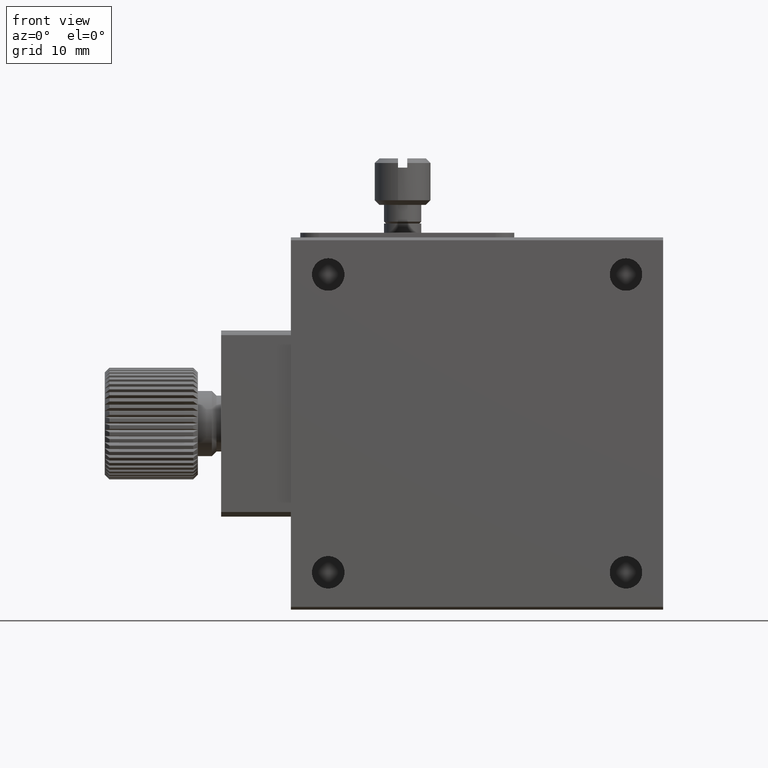
[diagram: clean part render]
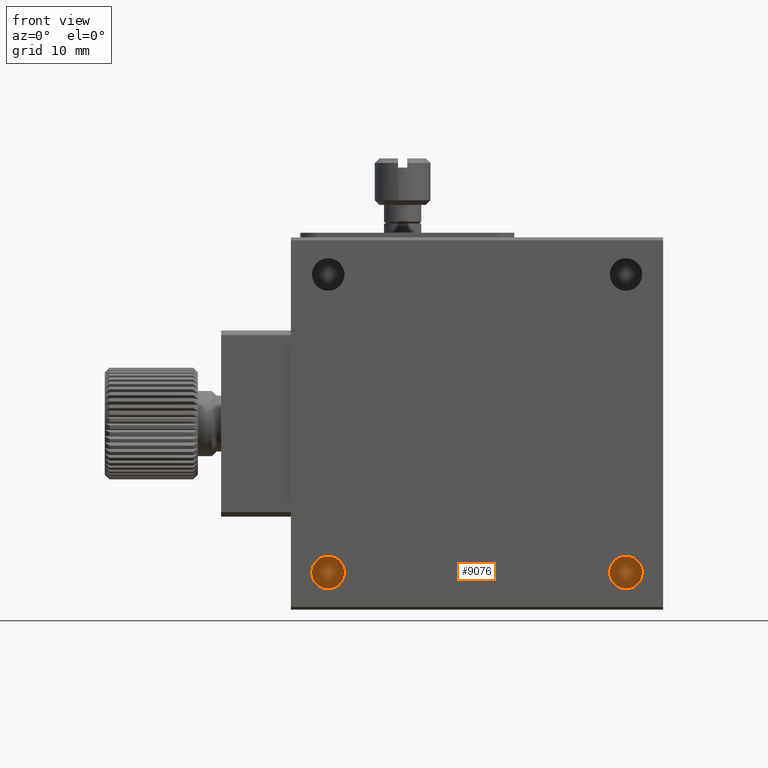
[diagram: same view with one face highlighted and labeled with its STEP entity id]
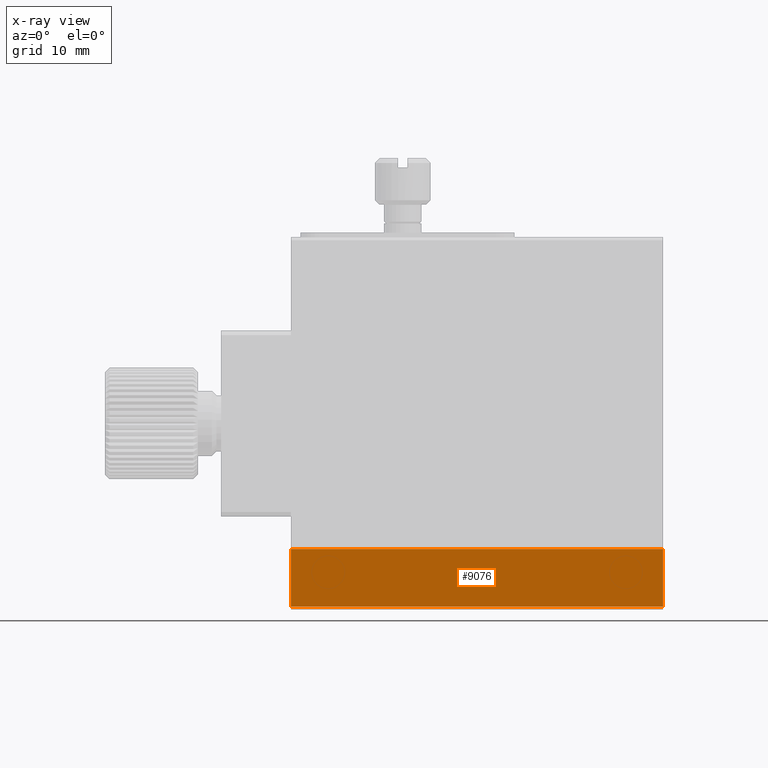
[diagram: x-ray of the same camera — body ghosted, the highlighted face saturated]
A machine part, front view. The second image highlights one B-rep face of the part: STEP entity #9076.
The next image is the same camera in x-ray: the body ghosted, the highlighted face saturated — about 0% of this face is hidden behind the body in this view.
In plain terms, the highlighted planar face has unit normal (0, 1, -0).
Its self-contained STEP definition (entity closure, byte-faithful):
#683 = VECTOR ( 'NONE', #5639, 1000.000000000000000 ) ;
#1062 = EDGE_CURVE ( 'NONE', #8415, #12051, #8582, .T. ) ;
#1406 = LINE ( 'NONE', #10703, #3490 ) ;
#1419 = VECTOR ( 'NONE', #11988, 1000.000000000000000 ) ;
#1696 = ORIENTED_EDGE ( 'NONE', *, *, #4167, .F. ) ;
#1751 = LINE ( 'NONE', #9841, #10953 ) ;
#3189 = EDGE_LOOP ( 'NONE', ( #1696, #9173, #6082, #7220 ) ) ;
#3490 = VECTOR ( 'NONE', #4568, 1000.000000000000000 ) ;
#3644 = LINE ( 'NONE', #8667, #1419 ) ;
#4167 = EDGE_CURVE ( 'NONE', #12051, #10602, #1406, .T. ) ;
#4568 = DIRECTION ( 'NONE',  ( -1.000000000000000000, 0.000000000000000000, -0.000000000000000000 ) ) ;
#5107 = AXIS2_PLACEMENT_3D ( 'NONE', #11498, #8638, #6623 ) ;
#5422 = VERTEX_POINT ( 'NONE', #7516 ) ;
#5455 = EDGE_CURVE ( 'NONE', #5422, #8415, #3644, .T. ) ;
#5639 = DIRECTION ( 'NONE',  ( 0.000000000000000000, 0.000000000000000000, -1.000000000000000000 ) ) ;
#6082 = ORIENTED_EDGE ( 'NONE', *, *, #5455, .F. ) ;
#6346 = CARTESIAN_POINT ( 'NONE',  ( 0.000000000000000000, 6.999999999999992006, -39.70000000000000995 ) ) ;
#6623 = DIRECTION ( 'NONE',  ( 0.000000000000000000, 2.797941090285179985E-16, 1.000000000000000000 ) ) ;
#7220 = ORIENTED_EDGE ( 'NONE', *, *, #10036, .T. ) ;
#7516 = CARTESIAN_POINT ( 'NONE',  ( 0.000000000000000000, 6.999999999999999112, -33.50000000000000000 ) ) ;
#7915 = DIRECTION ( 'NONE',  ( 0.000000000000000000, 0.000000000000000000, -1.000000000000000000 ) ) ;
#8415 = VERTEX_POINT ( 'NONE', #10995 ) ;
#8582 = LINE ( 'NONE', #8714, #683 ) ;
#8638 = DIRECTION ( 'NONE',  ( 0.000000000000000000, 1.000000000000000000, -2.797941090285179985E-16 ) ) ;
#8667 = CARTESIAN_POINT ( 'NONE',  ( 40.00000000000000000, 6.999999999999999112, -33.50000000000000000 ) ) ;
#8714 = CARTESIAN_POINT ( 'NONE',  ( 40.00000000000000000, 6.999999999999999112, 0.000000000000000000 ) ) ;
#9076 = ADVANCED_FACE ( 'NONE', ( #12703 ), #9575, .F. ) ;
#9173 = ORIENTED_EDGE ( 'NONE', *, *, #1062, .F. ) ;
#9575 = PLANE ( 'NONE',  #5107 ) ;
#9841 = CARTESIAN_POINT ( 'NONE',  ( 0.000000000000000000, 6.999999999999999112, 0.000000000000000000 ) ) ;
#10036 = EDGE_CURVE ( 'NONE', #5422, #10602, #1751, .T. ) ;
#10602 = VERTEX_POINT ( 'NONE', #6346 ) ;
#10703 = CARTESIAN_POINT ( 'NONE',  ( 40.00000000000000000, 6.999999999999997335, -39.70000000000000284 ) ) ;
#10953 = VECTOR ( 'NONE', #7915, 1000.000000000000000 ) ;
#10995 = CARTESIAN_POINT ( 'NONE',  ( 40.00000000000000000, 6.999999999999999112, -33.50000000000000000 ) ) ;
#11498 = CARTESIAN_POINT ( 'NONE',  ( 40.00000000000000000, 6.999999999999999112, -33.50000000000000000 ) ) ;
#11895 = CARTESIAN_POINT ( 'NONE',  ( 40.00000000000000000, 6.999999999999992006, -39.70000000000000995 ) ) ;
#11988 = DIRECTION ( 'NONE',  ( 1.000000000000000000, -0.000000000000000000, 0.000000000000000000 ) ) ;
#12051 = VERTEX_POINT ( 'NONE', #11895 ) ;
#12703 = FACE_OUTER_BOUND ( 'NONE', #3189, .T. ) ;